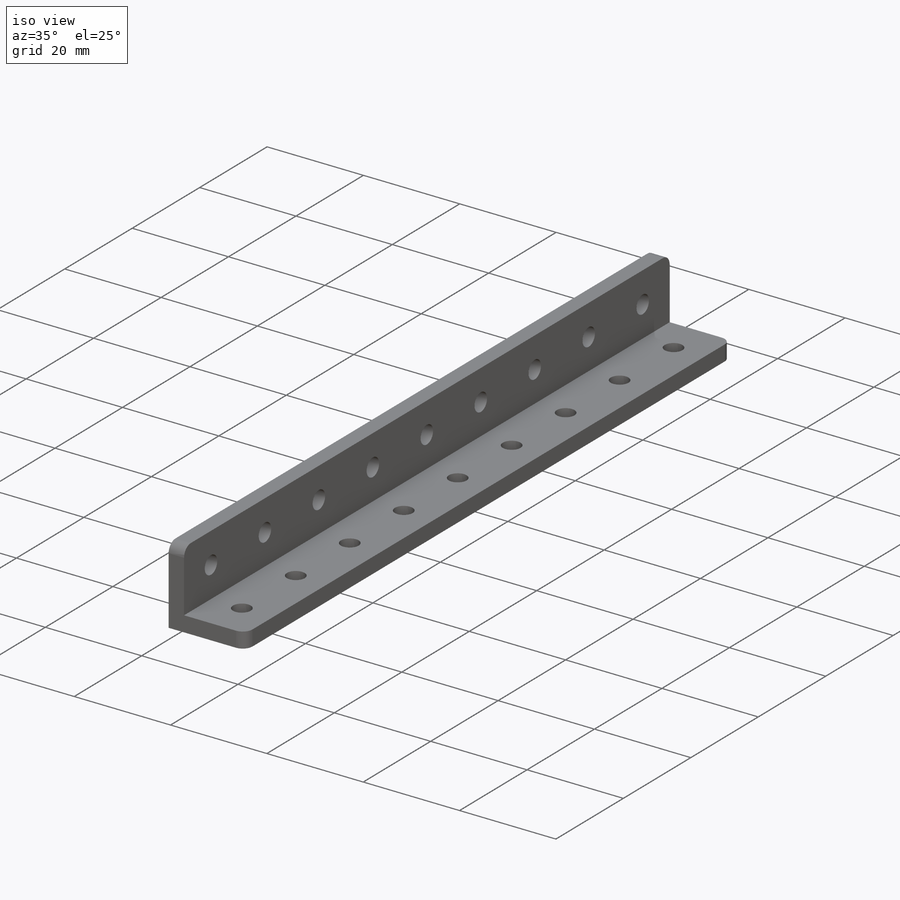
[diagram: iso view]
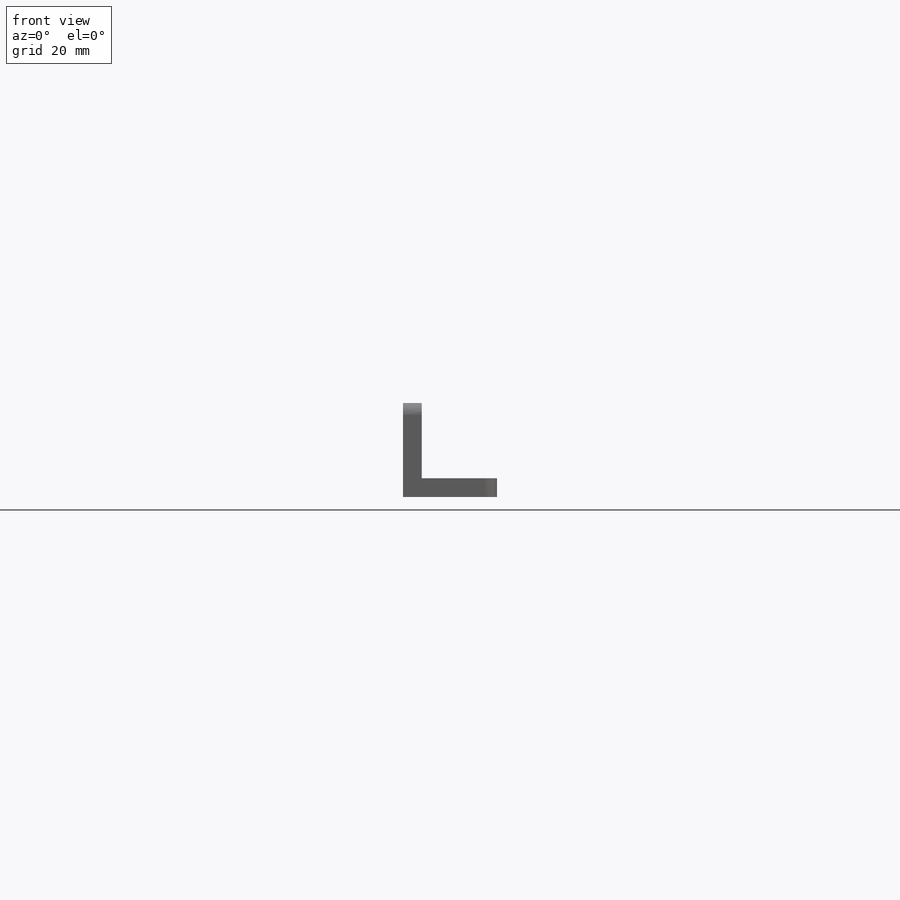
[diagram: front view]
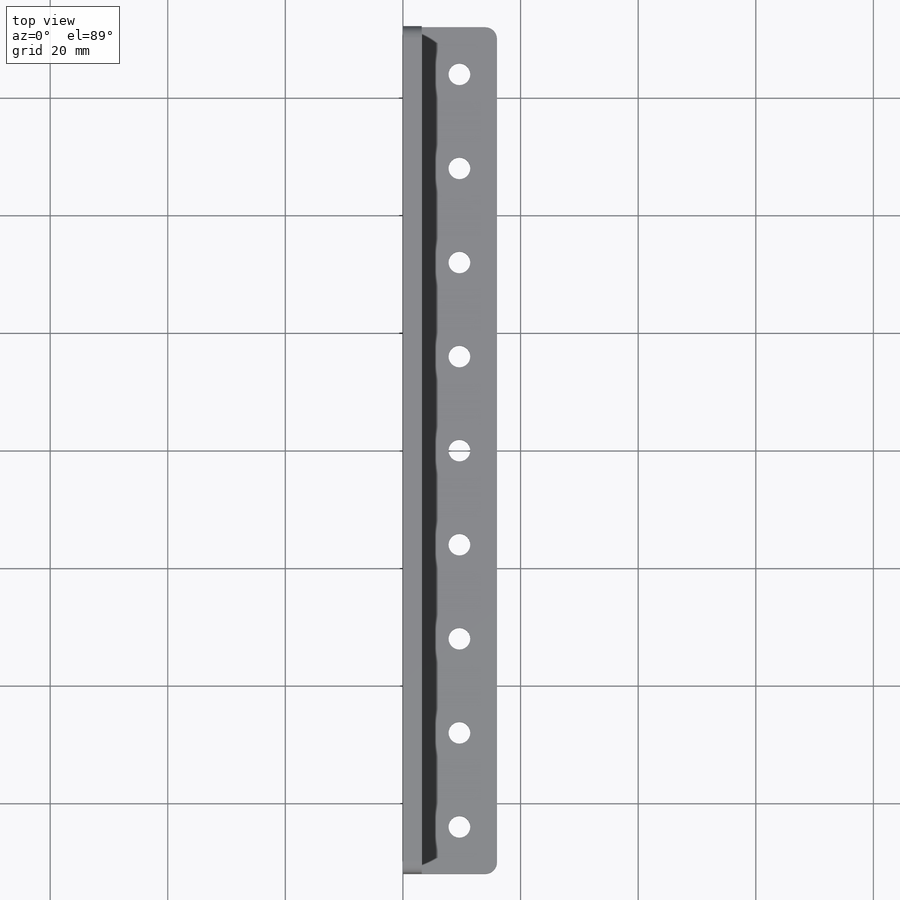
[diagram: top view]
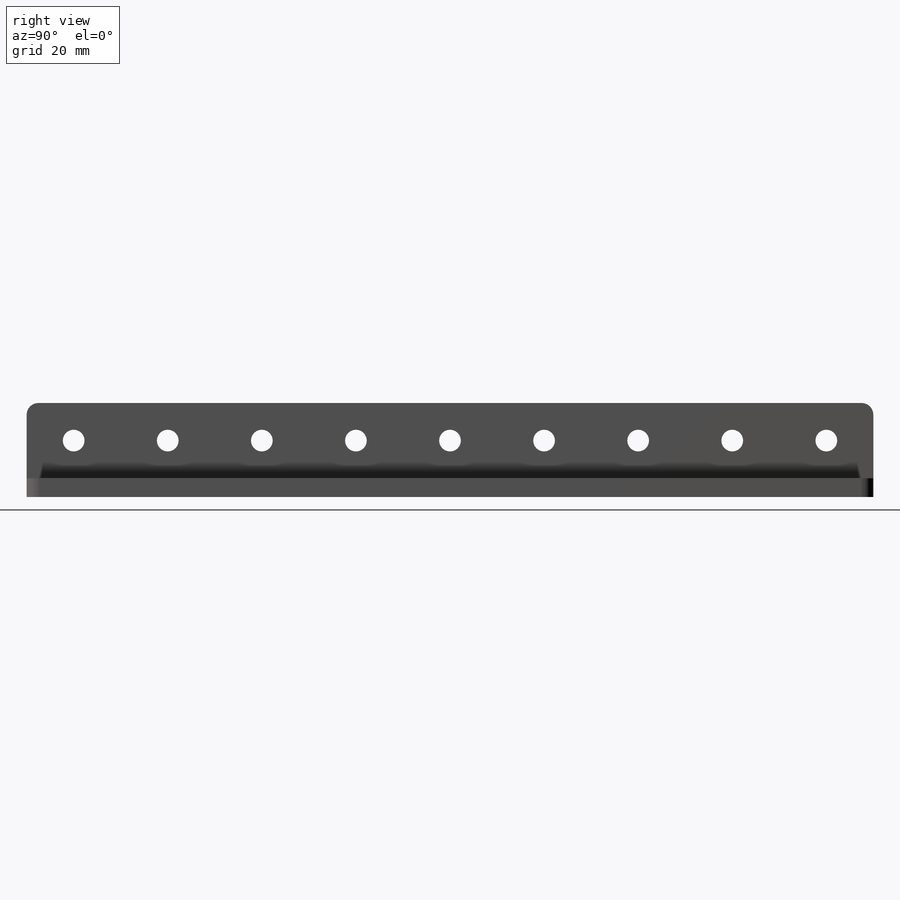
[diagram: right view]
SOLIDWORKS PART (.sldprt)
format: sldprt  version: not decoded by parser v0  size: 262,144 bytes
history: native  units: mm
features: sketch x3, cut_extrude x2, material x1, extrude x1, fillet x1, pattern_linear x1 (+17 scaffold rows collapsed)
feature tree (26):
  scaffold x17  (default folders/planes/origin — collapsed)
  material  "5052 Alloy"
  sketch  "Sketch1"  dims[D1=16.0mm D2=3.2mm D3=16.0mm D4=3.2mm D5=12.8mm]
  extrude  "Extrude1"  Depth=144mm
  fillet  "Fillet1"  Radius=2mm
  sketch  "Sketch2"  dims[c1.D1=3.7mm c1.D10=3.7mm c2.D1=3.7mm c2.D2=6.4mm c2.D3=8.0mm c2.D4=16.0mm c2.D5=16.0mm c2.D6=16.0mm c2.D7=16.0mm c2.D8=16.0mm c2.D9=16.0mm c2.D10=16.0mm c2.D11=16.0mm c2.D12=16.0mm c2.D13=16.0mm c2.D14=16.0mm c2.D15=16.0mm c2.D16=16.0mm c2.D17=8.0mm c3.D2=9.6mm]
  cut_extrude  "Cut-Extrude1"  [1 undecoded]
  sketch  "Sketch3"  dims[c1.D1=3.7mm c1.D2=3.7mm c2.D1=8.0mm c2.D2=6.4mm c3.D1=144.0mm c3.D2=9.6mm]
  cut_extrude  "Cut-Extrude2"  [1 undecoded]
  pattern_linear  "LPattern1"  Count1=5 Count2=5 Spacing1=16mm Spacing2=16mm
decode coverage: 6 of 8 modeling features carry decoded parameters
note: 2 parameter values undecoded
note: suppression state not decoded; provenance and decode notes live in map.json
